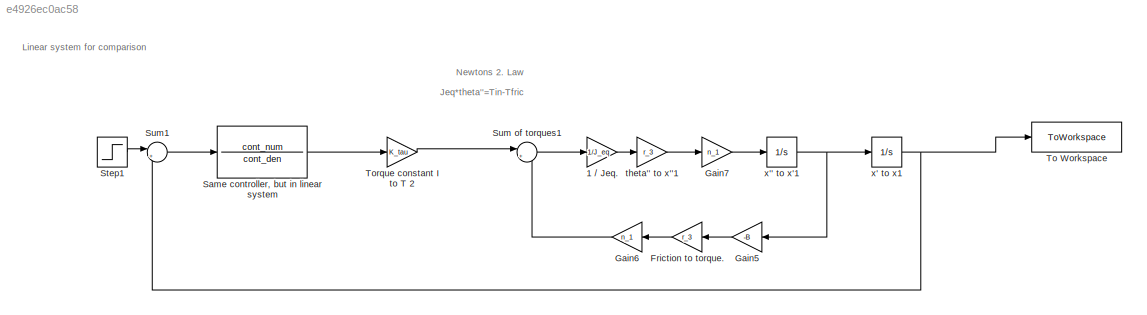
MODEL slx_e4926ec0ac58
KIND model
CONFIG AbsTol = auto
CONFIG EnableMultiTasking = off
CONFIG FixedStep = 0.0001
CONFIG MaxStep = auto
CONFIG MinStep = auto
CONFIG RelTol = 1e-3
CONFIG SampleTimeConstraint = Unconstrained
CONFIG SolverName = FixedStepAuto
CONFIG StartTime = 0.0
CONFIG StopTime = 5
BLOCK [Gain] 1 // Jeq.
  Gain = 1/J_eq
BLOCK [Gain] Friction to torque.
  Gain = r_3
  NameLocation = top
BLOCK [Gain] Gain5
  Gain = -B
  NameLocation = top
BLOCK [Gain] Gain6
  Gain = n_1
  NameLocation = top
BLOCK [Gain] Gain7
  Gain = n_1
BLOCK [TransferFcn] Same controller, but in linear system
  Denominator = cont_den
  Numerator = cont_num
BLOCK [Step] Step1
  After = step_size
  SampleTime = 0
  Time = 0
BLOCK [Sum] Sum of torques1
  Inputs = |++
  NameLocation = top
  Ports = [2, 1]
BLOCK [Sum] Sum1
  Inputs = |+-
  Ports = [2, 1]
BLOCK [ToWorkspace] To Workspace
  FixptAsFi = on
  MaxDataPoints = inf
  Ports = [1]
  SampleTime = -1
  SaveFormat = Timeseries
  VariableName = linear
BLOCK [Gain] Torque constant I to T 2
  Gain = K_tau
BLOCK [Gain] theta'' to x''1
  Gain = r_3
  NameLocation = top
BLOCK [Integrator] x' to x1
  Ports = [1, 1]
BLOCK [Integrator] x'' to x'1
  Ports = [1, 1]
ANNOTATION (root): Jeq*theta''=Tin-Tfric
ANNOTATION (root): Linear system for comparison
ANNOTATION (root): Newtons 2. Law
LINE 1 // Jeq.:1 -> theta'' to x''1:1
LINE Friction to torque.:1 -> Gain6:1
LINE Gain5:1 -> Friction to torque.:1
LINE Gain6:1 -> Sum of torques1:2
LINE Gain7:1 -> x'' to x'1:1
LINE Same controller, but in linear system:1 -> Torque constant I to T 2:1
LINE Step1:1 -> Sum1:1
LINE Sum of torques1:1 -> 1 // Jeq.:1
LINE Sum1:1 -> Same controller, but in linear system:1
LINE Torque constant I to T 2:1 -> Sum of torques1:1
LINE theta'' to x''1:1 -> Gain7:1
NET x' to x1:1 -> Sum1:2, To Workspace:1
NET x'' to x'1:1 -> Gain5:1, x' to x1:1
note: NET lines group one-source signal fan-out (src -> all destinations, sorted); 1:1 wires keep LINE
